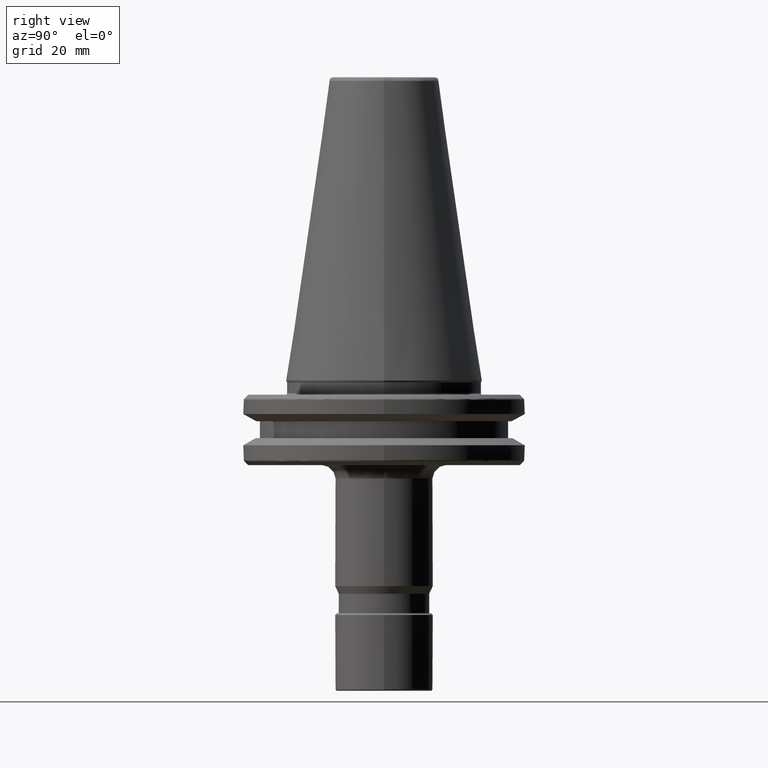
[diagram: clean part render]
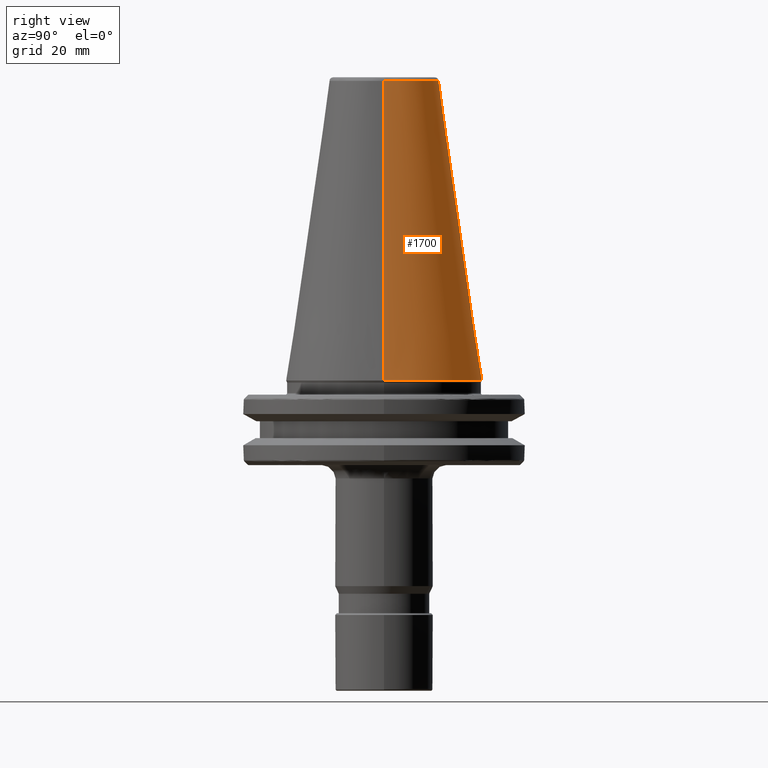
[diagram: same view with one face highlighted and labeled with its STEP entity id]
A machine part, right view. The second image highlights one B-rep face of the part: STEP entity #1700.
In plain terms, the highlighted conical surface has half-angle 8.297 deg.
Its self-contained STEP definition (entity closure, byte-faithful):
#112 = CARTESIAN_POINT ( 'NONE',  ( 0.0000000000000000000, 0.0000000000000000000, 67.54430822699997300 ) ) ;
#124 = DIRECTION ( 'NONE',  ( 0.1443082272694599900, 1.767266086161729800E-017, -0.9895327864918603800 ) ) ;
#156 = VERTEX_POINT ( 'NONE', #1716 ) ;
#165 = VERTEX_POINT ( 'NONE', #1180 ) ;
#200 = ORIENTED_EDGE ( 'NONE', *, *, #2472, .F. ) ;
#231 = ORIENTED_EDGE ( 'NONE', *, *, #1143, .T. ) ;
#278 = DIRECTION ( 'NONE',  ( 0.0000000000000000000, 0.0000000000000000000, -1.000000000000000000 ) ) ;
#472 = AXIS2_PLACEMENT_3D ( 'NONE', #1868, #278, #807 ) ;
#550 = ORIENTED_EDGE ( 'NONE', *, *, #1179, .T. ) ;
#742 = CONICAL_SURFACE ( 'NONE', #472, 12.37469537600000200, 0.1448138465495948400 ) ;
#801 = DIRECTION ( 'NONE',  ( -0.1443082272694599900, 0.0000000000000000000, -0.9895327864918603800 ) ) ;
#807 = DIRECTION ( 'NONE',  ( -1.000000000000000000, 0.0000000000000000000, 0.0000000000000000000 ) ) ;
#874 = DIRECTION ( 'NONE',  ( 0.0000000000000000000, 0.0000000000000000000, 1.000000000000000000 ) ) ;
#1041 = CARTESIAN_POINT ( 'NONE',  ( 12.37469537596690300, -3.807138672675623000E-009, 67.54430822700852800 ) ) ;
#1143 = EDGE_CURVE ( 'NONE', #3199, #165, #1213, .T. ) ;
#1156 = CARTESIAN_POINT ( 'NONE',  ( 0.0000000000000000000, 0.0000000000000000000, 0.0000000000000000000 ) ) ;
#1179 = EDGE_CURVE ( 'NONE', #165, #2391, #1795, .T. ) ;
#1180 = CARTESIAN_POINT ( 'NONE',  ( 22.22499999999999400, 2.721777511104992100E-015, 0.0000000000000000000 ) ) ;
#1208 = VECTOR ( 'NONE', #124, 1000.000000000000100 ) ;
#1213 = LINE ( 'NONE', #1975, #1208 ) ;
#1293 = LINE ( 'NONE', #2083, #1299 ) ;
#1299 = VECTOR ( 'NONE', #801, 1000.000000000000100 ) ;
#1423 = DIRECTION ( 'NONE',  ( 1.000000000000000000, 0.0000000000000000000, 0.0000000000000000000 ) ) ;
#1449 = DIRECTION ( 'NONE',  ( -1.000000000000000000, 8.881784197001252300E-016, 2.242930009368895400E-015 ) ) ;
#1700 = ADVANCED_FACE ( 'NONE', ( #1990 ), #742, .T. ) ;
#1716 = CARTESIAN_POINT ( 'NONE',  ( -12.37469537596881600, -1.111168798511305300E-009, 67.54430822699542600 ) ) ;
#1795 = CIRCLE ( 'NONE', #2271, 22.22499999999999800 ) ;
#1868 = CARTESIAN_POINT ( 'NONE',  ( 0.0000000000000000000, 0.0000000000000000000, 67.54430822700000200 ) ) ;
#1975 = CARTESIAN_POINT ( 'NONE',  ( 12.37469537600000200, 1.515463108264195400E-015, 67.54430822700000200 ) ) ;
#1990 = FACE_OUTER_BOUND ( 'NONE', #2371, .T. ) ;
#2083 = CARTESIAN_POINT ( 'NONE',  ( -12.37469537600000200, 0.0000000000000000000, 67.54430822700000200 ) ) ;
#2271 = AXIS2_PLACEMENT_3D ( 'NONE', #1156, #874, #1423 ) ;
#2371 = EDGE_LOOP ( 'NONE', ( #200, #231, #550, #3458 ) ) ;
#2391 = VERTEX_POINT ( 'NONE', #3319 ) ;
#2438 = DIRECTION ( 'NONE',  ( -0.0000000000000000000, -0.0000000000000000000, 1.000000000000000000 ) ) ;
#2472 = EDGE_CURVE ( 'NONE', #3199, #156, #2712, .T. ) ;
#2666 = AXIS2_PLACEMENT_3D ( 'NONE', #112, #2438, #1449 ) ;
#2712 = CIRCLE ( 'NONE', #2666, 12.37469537600000200 ) ;
#3113 = EDGE_CURVE ( 'NONE', #156, #2391, #1293, .T. ) ;
#3199 = VERTEX_POINT ( 'NONE', #1041 ) ;
#3319 = CARTESIAN_POINT ( 'NONE',  ( -22.22499999999999400, 0.0000000000000000000, 0.0000000000000000000 ) ) ;
#3458 = ORIENTED_EDGE ( 'NONE', *, *, #3113, .F. ) ;